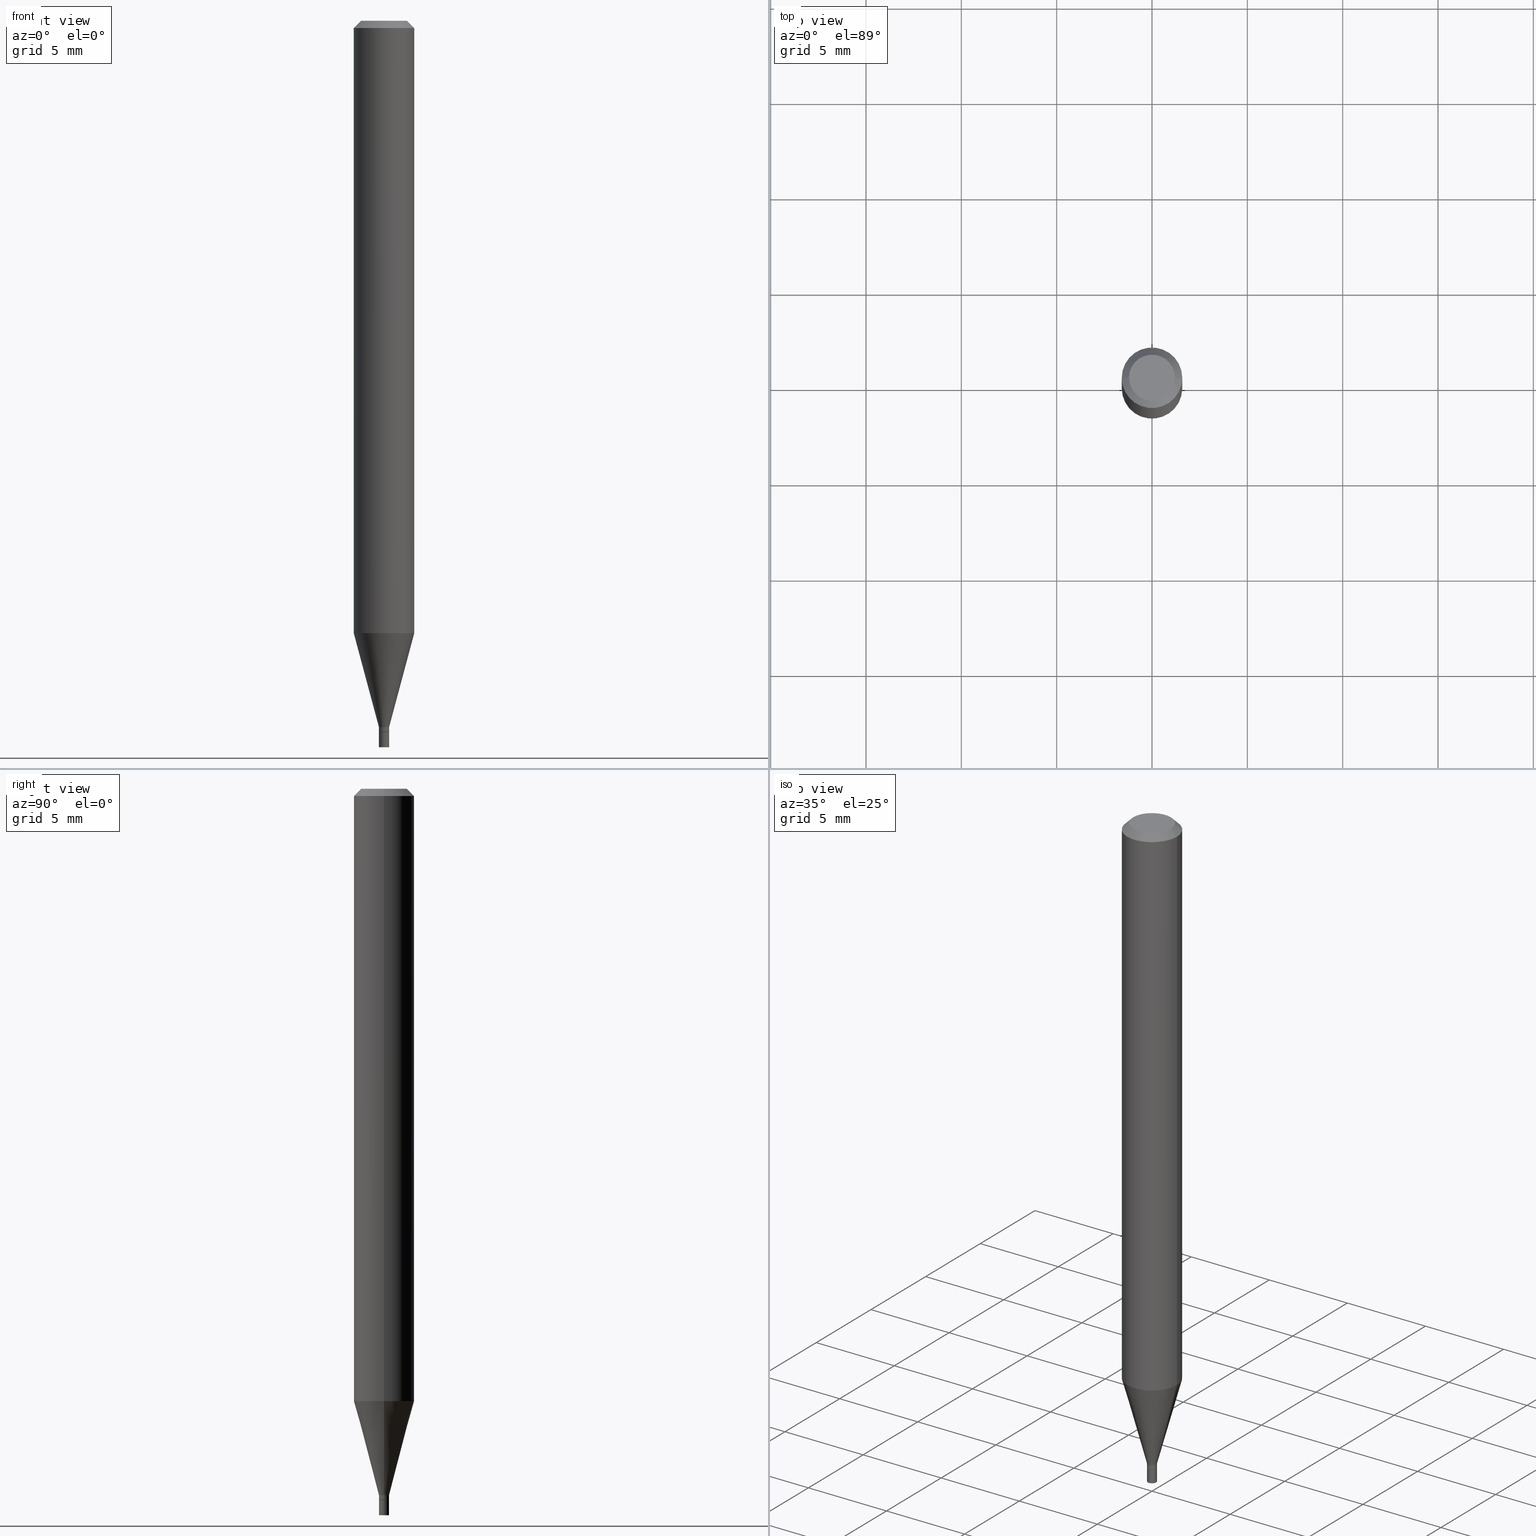
[diagram: canonical four-view strip — front | top / right | iso, engineering-drawing reading convention]
A machine part, canonical four-view strip (front | top / right | iso — engineering-drawing reading convention). The complete STEP part file that produces these views, byte-faithful:
ISO-10303-21;
HEADER;
FILE_DESCRIPTION (( 'STEP AP203' ),
    '1' );
FILE_NAME ('01101.STEP',
    '2024-03-19T22:55:03',
    ( '' ),
    ( '' ),
    'SwSTEP 2.0',
    'SolidWorks 2023',
    '' );
FILE_SCHEMA (( 'CONFIG_CONTROL_DESIGN' ));
ENDSEC;

DATA;
#1 = VERTEX_POINT ( 'NONE', #240 ) ;
#2 = COORDINATED_UNIVERSAL_TIME_OFFSET ( 5, 0, .BEHIND. ) ;
#3 = DATE_AND_TIME ( #327, #317 ) ;
#4 = EDGE_CURVE ( 'NONE', #21, #242, #94, .T. ) ;
#5 = CIRCLE ( 'NONE', #455, 0.01049999999999992432 ) ;
#6 = FACE_OUTER_BOUND ( 'NONE', #174, .T. ) ;
#7 = DATE_AND_TIME ( #294, #121 ) ;
#8 = CYLINDRICAL_SURFACE ( 'NONE', #136, 0.06250000000000000000 ) ;
#9 = MECHANICAL_CONTEXT ( 'NONE', #109, 'mechanical' ) ;
#10 = DIRECTION ( 'NONE',  ( 2.438088387897960049E-29, -3.491481338843145188E-15, -1.000000000000000000 ) ) ;
#11 = DIRECTION ( 'NONE',  ( -2.445468806185136597E-29, 3.491481338843145583E-15, 1.000000000000000000 ) ) ;
#12 = CC_DESIGN_PERSON_AND_ORGANIZATION_ASSIGNMENT ( #216, #43, ( #151 ) ) ;
#13 = AXIS2_PLACEMENT_3D ( 'NONE', #347, #448, #413 ) ;
#14 = DIRECTION ( 'NONE',  ( -2.445468806185136597E-29, 3.491481338843145583E-15, 1.000000000000000000 ) ) ;
#15 = CARTESIAN_POINT ( 'NONE',  ( 0.06250000000000000000, -4.364351673553916694E-16, 3.047610484872459871E-30 ) ) ;
#16 = CARTESIAN_POINT ( 'NONE',  ( 3.591170941882873536E-29, -5.127240346091159508E-15, -1.468500000000000139 ) ) ;
#17 = ADVANCED_FACE ( 'NONE', ( #22 ), #165, .F. ) ;
#18 = AXIS2_PLACEMENT_3D ( 'NONE', #452, #300, #342 ) ;
#19 = LINE ( 'NONE', #307, #114 ) ;
#20 = CARTESIAN_POINT ( 'NONE',  ( 3.591170941882873536E-29, -5.127240346091159508E-15, -1.468500000000000139 ) ) ;
#21 = VERTEX_POINT ( 'NONE', #330 ) ;
#22 = FACE_OUTER_BOUND ( 'NONE', #138, .T. ) ;
#23 = DIRECTION ( 'NONE',  ( 1.000000000000000000, -6.982962677686284854E-15, 0.000000000000000000 ) ) ;
#24 = ORIENTED_EDGE ( 'NONE', *, *, #373, .F. ) ;
#25 = ORIENTED_EDGE ( 'NONE', *, *, #340, .F. ) ;
#26 = ORIENTED_EDGE ( 'NONE', *, *, #270, .F. ) ;
#27 = EDGE_LOOP ( 'NONE', ( #319, #382, #425, #349 ) ) ;
#28 = ADVANCED_FACE ( 'NONE', ( #6 ), #102, .T. ) ;
#29 = CARTESIAN_POINT ( 'NONE',  ( 7.848942293851005666E-45, -1.120620941036972666E-30, -3.209585938695794308E-16 ) ) ;
#30 = VECTOR ( 'NONE', #374, 39.37007874015748143 ) ;
#31 = APPROVAL_PERSON_ORGANIZATION ( #396, #247, #220 ) ;
#32 = EDGE_LOOP ( 'NONE', ( #358, #243, #35, #162 ) ) ;
#33 = ORIENTED_EDGE ( 'NONE', *, *, #388, .T. ) ;
#34 = CARTESIAN_POINT ( 'NONE',  ( -0.06250000000000000000, -1.789469637036353642E-15, -0.01499999999999999944 ) ) ;
#35 = ORIENTED_EDGE ( 'NONE', *, *, #281, .T. ) ;
#36 = CARTESIAN_POINT ( 'NONE',  ( 0.06250000000000000000, -4.851180641045576712E-15, -1.264433358006418651 ) ) ;
#37 = CC_DESIGN_PERSON_AND_ORGANIZATION_ASSIGNMENT ( #399, #75, ( #273 ) ) ;
#38 = CIRCLE ( 'NONE', #297, 0.04749999999999999362 ) ;
#39 = AXIS2_PLACEMENT_3D ( 'NONE', #252, #134, #318 ) ;
#40 = EDGE_LOOP ( 'NONE', ( #258, #169, #213, #244 ) ) ;
#41 = APPROVAL_STATUS ( 'not_yet_approved' ) ;
#42 = VECTOR ( 'NONE', #350, 39.37007874015748143 ) ;
#43 = PERSON_AND_ORGANIZATION_ROLE ( 'creator' ) ;
#44 = DIRECTION ( 'NONE',  ( -2.445468806185136597E-29, 3.491481338843145583E-15, 1.000000000000000000 ) ) ;
#45 = DIRECTION ( 'NONE',  ( 1.000000000000000000, -6.982962677686265922E-15, 4.876176775795935793E-29 ) ) ;
#46 = DIRECTION ( 'NONE',  ( -2.445468806185136597E-29, 3.491481338843145583E-15, 1.000000000000000000 ) ) ;
#47 = CIRCLE ( 'NONE', #285, 0.01050000000000000239 ) ;
#48 = CARTESIAN_POINT ( 'NONE',  ( 3.591170941882873536E-29, -5.127240346091159508E-15, -1.468500000000000139 ) ) ;
#49 = EDGE_CURVE ( 'NONE', #103, #457, #189, .T. ) ;
#50 = CARTESIAN_POINT ( 'NONE',  ( -0.06250000000000000000, 3.840629472727444916E-16, -0.01499999999999999944 ) ) ;
#51 = DIRECTION ( 'NONE',  ( -0.7071067811865551223, 2.468850131082336736E-15, -0.7071067811865399122 ) ) ;
#52 = AXIS2_PLACEMENT_3D ( 'NONE', #345, #441, #45 ) ;
#53 = FACE_OUTER_BOUND ( 'NONE', #395, .T. ) ;
#54 = DIRECTION ( 'NONE',  ( 0.7071067811865551223, -7.319954787623281289E-15, -0.7071067811865399122 ) ) ;
#55 = DIRECTION ( 'NONE',  ( 1.000000000000000000, -6.982962677686267499E-15, 4.852736867747366768E-29 ) ) ;
#56 = ORIENTED_EDGE ( 'NONE', *, *, #329, .F. ) ;
#57 = EDGE_CURVE ( 'NONE', #384, #354, #118, .T. ) ;
#58 = CARTESIAN_POINT ( 'NONE',  ( 0.01049999999999992432, -5.165646640818432586E-15, -1.458500000000000130 ) ) ;
#59 = ORIENTED_EDGE ( 'NONE', *, *, #400, .T. ) ;
#60 = ORIENTED_EDGE ( 'NONE', *, *, #440, .F. ) ;
#61 = DIRECTION ( 'NONE',  ( 2.445468806185136597E-29, -3.491481338843145583E-15, -1.000000000000000000 ) ) ;
#62 = AXIS2_PLACEMENT_3D ( 'NONE', #129, #61, #201 ) ;
#63 = AXIS2_PLACEMENT_3D ( 'NONE', #132, #464, #23 ) ;
#64 = ORIENTED_EDGE ( 'NONE', *, *, #233, .T. ) ;
#65 = ORIENTED_EDGE ( 'NONE', *, *, #270, .T. ) ;
#66 = VERTEX_POINT ( 'NONE', #148 ) ;
#67 = DIRECTION ( 'NONE',  ( 0.2588190451025214611, 1.565188264969621573E-15, 0.9659258262890682012 ) ) ;
#68 = CC_DESIGN_DATE_AND_TIME_ASSIGNMENT ( #183, #221, ( #273 ) ) ;
#69 = COORDINATED_UNIVERSAL_TIME_OFFSET ( 5, 0, .BEHIND. ) ;
#70 = ORIENTED_EDGE ( 'NONE', *, *, #433, .F. ) ;
#71 =( CONVERSION_BASED_UNIT ( 'INCH', #267 ) LENGTH_UNIT ( ) NAMED_UNIT ( #261 ) );
#72 = AXIS2_PLACEMENT_3D ( 'NONE', #447, #226, #123 ) ;
#73 = LOCAL_TIME ( 18, 55, 3.000000000000000000, #2 ) ;
#74 = ADVANCED_FACE ( 'NONE', ( #111 ), #8, .T. ) ;
#75 = PERSON_AND_ORGANIZATION_ROLE ( 'creator' ) ;
#76 = CARTESIAN_POINT ( 'NONE',  ( 0.000000000000000000, 0.000000000000000000, 0.000000000000000000 ) ) ;
#77 = PLANE ( 'NONE',  #185 ) ;
#78 = CLOSED_SHELL ( 'NONE', ( #397, #17, #428, #79 ) ) ;
#79 = ADVANCED_FACE ( 'NONE', ( #147 ), #77, .F. ) ;
#80 = DIRECTION ( 'NONE',  ( 1.000000000000000000, -6.982962677686266711E-15, 0.000000000000000000 ) ) ;
#81 = DIRECTION ( 'NONE',  ( 1.000000000000000000, -6.982962677686266711E-15, 4.876176775795935793E-29 ) ) ;
#82 = CONICAL_SURFACE ( 'NONE', #62, 0.06250000000000000000, 0.7853981633974590482 ) ;
#83 = AXIS2_PLACEMENT_3D ( 'NONE', #283, #104, #256 ) ;
#84 = CYLINDRICAL_SURFACE ( 'NONE', #430, 0.06250000000000000000 ) ;
#85 = FACE_OUTER_BOUND ( 'NONE', #87, .T. ) ;
#86 = CARTESIAN_POINT ( 'NONE',  ( 0.000000000000000000, 0.000000000000000000, 0.000000000000000000 ) ) ;
#87 = EDGE_LOOP ( 'NONE', ( #206, #203, #303, #460 ) ) ;
#88 = VECTOR ( 'NONE', #51, 39.37007874015748143 ) ;
#89 = VERTEX_POINT ( 'NONE', #260 ) ;
#90 = CARTESIAN_POINT ( 'NONE',  ( 3.092132334504619836E-29, -4.414745473690185042E-15, -1.264433358006418651 ) ) ;
#91 = CC_DESIGN_APPROVAL ( #321, ( #273 ) ) ;
#92 = EDGE_CURVE ( 'NONE', #239, #386, #392, .T. ) ;
#93 = ORIENTED_EDGE ( 'NONE', *, *, #217, .T. ) ;
#94 = LINE ( 'NONE', #235, #415 ) ;
#95 = DIRECTION ( 'NONE',  ( 1.000000000000000000, -6.982962677686284854E-15, 0.000000000000000000 ) ) ;
#96 = DIRECTION ( 'NONE',  ( 1.000000000000000000, -6.982962677686235156E-15, 0.000000000000000000 ) ) ;
#97 = DIRECTION ( 'NONE',  ( 1.000000000000000000, -6.982962677686265922E-15, 4.876176775795935232E-29 ) ) ;
#98 = VERTEX_POINT ( 'NONE', #219 ) ;
#99 = ORIENTED_EDGE ( 'NONE', *, *, #156, .T. ) ;
#100 = FACE_OUTER_BOUND ( 'NONE', #32, .T. ) ;
#101 = ADVANCED_BREP_SHAPE_REPRESENTATION ( '01101', ( #356, #352, #298 ), #339 ) ;
#102 = CYLINDRICAL_SURFACE ( 'NONE', #398, 0.01049999999999992432 ) ;
#103 = VERTEX_POINT ( 'NONE', #124 ) ;
#104 = DIRECTION ( 'NONE',  ( -2.445468806185136597E-29, 3.491481338843145583E-15, 1.000000000000000000 ) ) ;
#105 = AXIS2_PLACEMENT_3D ( 'NONE', #214, #444, #304 ) ;
#106 = EDGE_CURVE ( 'NONE', #386, #103, #423, .T. ) ;
#107 = CC_DESIGN_APPROVAL ( #247, ( #151 ) ) ;
#108 = PERSON_AND_ORGANIZATION ( #323, #381 ) ;
#109 = APPLICATION_CONTEXT ( 'configuration controlled 3d designs of mechanical parts and assemblies' ) ;
#110 = PERSON_AND_ORGANIZATION ( #323, #381 ) ;
#111 = FACE_OUTER_BOUND ( 'NONE', #414, .T. ) ;
#112 = ADVANCED_FACE ( 'NONE', ( #232 ), #268, .T. ) ;
#113 = APPROVAL_STATUS ( 'not_yet_approved' ) ;
#114 = VECTOR ( 'NONE', #438, 39.37007874015748143 ) ;
#115 = DIRECTION ( 'NONE',  ( -1.000000000000000000, 6.982962677686265922E-15, -4.876176775795935793E-29 ) ) ;
#116 = DATE_AND_TIME ( #451, #416 ) ;
#117 = CARTESIAN_POINT ( 'NONE',  ( -0.01000000000000000194, -5.053536845341038225E-15, -1.468500000000000139 ) ) ;
#118 = LINE ( 'NONE', #157, #437 ) ;
#119 = LINE ( 'NONE', #231, #380 ) ;
#120 = CIRCLE ( 'NONE', #251, 0.06250000000000000000 ) ;
#121 = LOCAL_TIME ( 18, 55, 3.000000000000000000, #184 ) ;
#122 = CARTESIAN_POINT ( 'NONE',  ( 3.566716253821021430E-29, -5.092325532702727858E-15, -1.458500000000000130 ) ) ;
#123 = DIRECTION ( 'NONE',  ( 1.000000000000000000, -6.982962677686243834E-15, 0.000000000000000000 ) ) ;
#124 = CARTESIAN_POINT ( 'NONE',  ( 0.01049999999999992432, -5.198815713537443520E-15, -1.468000000000000194 ) ) ;
#125 = ADVANCED_FACE ( 'NONE', ( #272 ), #279, .T. ) ;
#126 = DIRECTION ( 'NONE',  ( -2.445468806185136597E-29, 3.491481338843145583E-15, 1.000000000000000000 ) ) ;
#127 = AXIS2_PLACEMENT_3D ( 'NONE', #188, #274, #409 ) ;
#128 = ORIENTED_EDGE ( 'NONE', *, *, #140, .F. ) ;
#129 = CARTESIAN_POINT ( 'NONE',  ( 3.668203209277705088E-31, -5.237222008264718399E-17, -0.01499999999999999944 ) ) ;
#130 = AXIS2_PLACEMENT_3D ( 'NONE', #278, #419, #164 ) ;
#131 = ORIENTED_EDGE ( 'NONE', *, *, #145, .F. ) ;
#132 = CARTESIAN_POINT ( 'NONE',  ( 3.668203209277704895E-29, -5.237222008264718177E-15, -1.500000000000000222 ) ) ;
#133 = ADVANCED_FACE ( 'NONE', ( #439 ), #338, .T. ) ;
#134 = DIRECTION ( 'NONE',  ( -2.445468806185136597E-29, 3.491481338843145583E-15, 1.000000000000000000 ) ) ;
#135 = CARTESIAN_POINT ( 'NONE',  ( 3.668203209277704895E-29, -5.237222008264718177E-15, -1.500000000000000222 ) ) ;
#136 = AXIS2_PLACEMENT_3D ( 'NONE', #266, #44, #222 ) ;
#137 = AXIS2_PLACEMENT_3D ( 'NONE', #458, #427, #97 ) ;
#138 = EDGE_LOOP ( 'NONE', ( #24, #205 ) ) ;
#139 = CARTESIAN_POINT ( 'NONE',  ( 0.000000000000000000, 0.000000000000000000, 0.000000000000000000 ) ) ;
#140 = EDGE_CURVE ( 'NONE', #353, #242, #158, .T. ) ;
#141 = PERSON_AND_ORGANIZATION ( #323, #381 ) ;
#142 = CIRCLE ( 'NONE', #207, 0.01000000000000000194 ) ;
#143 = AXIS2_PLACEMENT_3D ( 'NONE', #16, #14, #406 ) ;
#144 = SECURITY_CLASSIFICATION_LEVEL ( 'unclassified' ) ;
#145 = EDGE_CURVE ( 'NONE', #89, #239, #359, .T. ) ;
#146 = CALENDAR_DATE ( 2024, 19, 3 ) ;
#147 = FACE_OUTER_BOUND ( 'NONE', #412, .T. ) ;
#148 = CARTESIAN_POINT ( 'NONE',  ( 0.01050000000000000239, -5.310543116380424482E-15, -1.500000000000000222 ) ) ;
#149 = DIRECTION ( 'NONE',  ( -2.445468806185136597E-29, 3.491481338843145583E-15, 1.000000000000000000 ) ) ;
#150 = CIRCLE ( 'NONE', #371, 0.06250000000000000000 ) ;
#151 = PRODUCT_DEFINITION_FORMATION_WITH_SPECIFIED_SOURCE ( 'ANY', '', #308, .NOT_KNOWN. ) ;
#152 = CARTESIAN_POINT ( 'NONE',  ( 3.316907271900976096E-16, 0.04749999999999999362, -3.263246605298391118E-16 ) ) ;
#153 = UNCERTAINTY_MEASURE_WITH_UNIT (LENGTH_MEASURE( 1.000000000000000082E-05 ), #71, 'distance_accuracy_value', 'NONE');
#154 = CARTESIAN_POINT ( 'NONE',  ( 0.01049999999999992432, -7.332110811570528228E-17, 5.119985614585695588E-31 ) ) ;
#155 = CARTESIAN_POINT ( 'NONE',  ( -0.01049999999999992432, -4.494187404644019652E-15, -1.458500000000000130 ) ) ;
#156 = EDGE_CURVE ( 'NONE', #98, #1, #47, .T. ) ;
#157 = CARTESIAN_POINT ( 'NONE',  ( -0.06250000000000000000, 4.440892098500626162E-16, -3.074334431409316114E-30 ) ) ;
#158 = LINE ( 'NONE', #15, #30 ) ;
#159 = PRODUCT_RELATED_PRODUCT_CATEGORY ( 'detail', '', ( #308 ) ) ;
#160 = CIRCLE ( 'NONE', #263, 0.01050000000000000239 ) ;
#161 = DIRECTION ( 'NONE',  ( -1.000000000000000000, 6.982962677686266711E-15, 0.000000000000000000 ) ) ;
#162 = ORIENTED_EDGE ( 'NONE', *, *, #156, .F. ) ;
#163 = CC_DESIGN_PERSON_AND_ORGANIZATION_ASSIGNMENT ( #108, #370, ( #197 ) ) ;
#164 = DIRECTION ( 'NONE',  ( 1.000000000000000000, -6.982962677686266711E-15, 0.000000000000000000 ) ) ;
#165 = PLANE ( 'NONE',  #190 ) ;
#166 = DIRECTION ( 'NONE',  ( -2.445468806185136597E-29, 3.491481338843145583E-15, 1.000000000000000000 ) ) ;
#167 = ORIENTED_EDGE ( 'NONE', *, *, #286, .T. ) ;
#168 = EDGE_LOOP ( 'NONE', ( #56, #253, #33, #456 ) ) ;
#169 = ORIENTED_EDGE ( 'NONE', *, *, #264, .T. ) ;
#170 = CONICAL_SURFACE ( 'NONE', #357, 0.01000000000000000194, 0.7853981633974718157 ) ;
#171 = LINE ( 'NONE', #391, #306 ) ;
#172 = VECTOR ( 'NONE', #245, 39.37007874015748143 ) ;
#173 = ADVANCED_FACE ( 'NONE', ( #336 ), #224, .T. ) ;
#174 = EDGE_LOOP ( 'NONE', ( #314, #424, #70, #218 ) ) ;
#175 = FACE_OUTER_BOUND ( 'NONE', #289, .T. ) ;
#176 = DIRECTION ( 'NONE',  ( -2.445468806185136597E-29, 3.491481338843145583E-15, 1.000000000000000000 ) ) ;
#177 = APPLICATION_CONTEXT ( 'configuration controlled 3d designs of mechanical parts and assemblies' ) ;
#178 = APPROVAL_ROLE ( '' ) ;
#179 = CIRCLE ( 'NONE', #238, 0.06250000000000000000 ) ;
#180 = CC_DESIGN_SECURITY_CLASSIFICATION ( #197, ( #151 ) ) ;
#181 = EDGE_CURVE ( 'NONE', #1, #98, #305, .T. ) ;
#182 = APPROVAL_STATUS ( 'not_yet_approved' ) ;
#183 = DATE_AND_TIME ( #223, #73 ) ;
#184 = COORDINATED_UNIVERSAL_TIME_OFFSET ( 5, 0, .BEHIND. ) ;
#185 = AXIS2_PLACEMENT_3D ( 'NONE', #334, #10, #436 ) ;
#186 = DIRECTION ( 'NONE',  ( -2.445468806185136597E-29, 3.491481338843145583E-15, 1.000000000000000000 ) ) ;
#187 = CARTESIAN_POINT ( 'NONE',  ( 3.668203209277705088E-31, -5.237222008264718399E-17, -0.01499999999999999944 ) ) ;
#188 = CARTESIAN_POINT ( 'NONE',  ( 3.591170941882873536E-29, -5.127240346091159508E-15, -1.468500000000000139 ) ) ;
#189 = LINE ( 'NONE', #154, #325 ) ;
#190 = AXIS2_PLACEMENT_3D ( 'NONE', #421, #393, #463 ) ;
#191 = ADVANCED_FACE ( 'NONE', ( #192 ), #236, .F. ) ;
#192 = FACE_OUTER_BOUND ( 'NONE', #379, .T. ) ;
#193 = FACE_OUTER_BOUND ( 'NONE', #387, .T. ) ;
#194 = DIRECTION ( 'NONE',  ( 1.000000000000000000, -6.982962677686235156E-15, 0.000000000000000000 ) ) ;
#195 = CC_DESIGN_DATE_AND_TIME_ASSIGNMENT ( #7, #434, ( #197 ) ) ;
#196 = AXIS2_PLACEMENT_3D ( 'NONE', #299, #301, #161 ) ;
#197 = SECURITY_CLASSIFICATION ( '', '', #144 ) ;
#198 = DIRECTION ( 'NONE',  ( -2.445468806185136597E-29, 3.491481338843145583E-15, 1.000000000000000000 ) ) ;
#199 = ORIENTED_EDGE ( 'NONE', *, *, #295, .T. ) ;
#200 = APPROVAL_ROLE ( '' ) ;
#201 = DIRECTION ( 'NONE',  ( -1.000000000000000000, 6.982962677686266711E-15, 0.000000000000000000 ) ) ;
#202 = ORIENTED_EDGE ( 'NONE', *, *, #329, .T. ) ;
#203 = ORIENTED_EDGE ( 'NONE', *, *, #92, .T. ) ;
#204 = DIRECTION ( 'NONE',  ( -2.445468806185136597E-29, 3.491481338843145583E-15, 1.000000000000000000 ) ) ;
#205 = ORIENTED_EDGE ( 'NONE', *, *, #407, .F. ) ;
#206 = ORIENTED_EDGE ( 'NONE', *, *, #145, .T. ) ;
#207 = AXIS2_PLACEMENT_3D ( 'NONE', #20, #204, #96 ) ;
#208 = ADVANCED_FACE ( 'NONE', ( #85 ), #170, .T. ) ;
#209 = DIRECTION ( 'NONE',  ( 1.000000000000000000, -6.982962677686267499E-15, 4.852736867747366768E-29 ) ) ;
#210 = CIRCLE ( 'NONE', #63, 0.01050000000000000239 ) ;
#211 = ORIENTED_EDGE ( 'NONE', *, *, #4, .F. ) ;
#212 = ORIENTED_EDGE ( 'NONE', *, *, #57, .F. ) ;
#213 = ORIENTED_EDGE ( 'NONE', *, *, #293, .F. ) ;
#214 = CARTESIAN_POINT ( 'NONE',  ( 0.000000000000000000, 0.000000000000000000, 0.000000000000000000 ) ) ;
#215 = DIRECTION ( 'NONE',  ( 1.000000000000000000, -6.982962677686262766E-15, 0.000000000000000000 ) ) ;
#216 = PERSON_AND_ORGANIZATION ( #323, #381 ) ;
#217 = EDGE_CURVE ( 'NONE', #282, #354, #341, .T. ) ;
#218 = ORIENTED_EDGE ( 'NONE', *, *, #49, .F. ) ;
#219 = CARTESIAN_POINT ( 'NONE',  ( -0.01050000000000000239, -5.107624189923127862E-15, -1.468500000000000139 ) ) ;
#220 = APPROVAL_ROLE ( '' ) ;
#221 = DATE_TIME_ROLE ( 'creation_date' ) ;
#222 = DIRECTION ( 'NONE',  ( 1.000000000000000000, -6.982962677686266711E-15, 4.876176775795935793E-29 ) ) ;
#223 = CALENDAR_DATE ( 2024, 19, 3 ) ;
#224 = CONICAL_SURFACE ( 'NONE', #196, 0.06250000000000000000, 0.7853981633974590482 ) ;
#225 = APPROVAL_PERSON_ORGANIZATION ( #110, #410, #200 ) ;
#226 = DIRECTION ( 'NONE',  ( -2.445468806185136597E-29, 3.491481338843145583E-15, 1.000000000000000000 ) ) ;
#227 = ADVANCED_FACE ( 'NONE', ( #296 ), #405, .F. ) ;
#228 = CARTESIAN_POINT ( 'NONE',  ( 0.01050000000000000239, -7.332110811570581229E-17, 5.119985614585733248E-31 ) ) ;
#229 = DIRECTION ( 'NONE',  ( -2.445468806185136877E-29, 3.491481338843145188E-15, 1.000000000000000000 ) ) ;
#230 = CIRCLE ( 'NONE', #443, 0.01049999999999992432 ) ;
#231 = CARTESIAN_POINT ( 'NONE',  ( -0.01049999999999992432, -5.017718545447917667E-15, -1.458500000000000130 ) ) ;
#232 = FACE_OUTER_BOUND ( 'NONE', #310, .T. ) ;
#233 = EDGE_CURVE ( 'NONE', #89, #103, #19, .T. ) ;
#234 = CARTESIAN_POINT ( 'NONE',  ( 3.591170941882873536E-29, -5.127240346091159508E-15, -1.468500000000000139 ) ) ;
#235 = CARTESIAN_POINT ( 'NONE',  ( 0.06250000000000000000, -4.811533449433679005E-16, -0.01499999999999999944 ) ) ;
#236 = PLANE ( 'NONE',  #454 ) ;
#237 = PRODUCT_DEFINITION_SHAPE ( 'NONE', 'NONE',  #273 ) ;
#238 = AXIS2_PLACEMENT_3D ( 'NONE', #187, #11, #80 ) ;
#239 = VERTEX_POINT ( 'NONE', #117 ) ;
#240 = CARTESIAN_POINT ( 'NONE',  ( 0.01050000000000000239, -5.200561454206865813E-15, -1.468500000000000139 ) ) ;
#241 = CARTESIAN_POINT ( 'NONE',  ( -0.01049999999999992432, -5.050887618166927813E-15, -1.468000000000000194 ) ) ;
#242 = VERTEX_POINT ( 'NONE', #411 ) ;
#243 = ORIENTED_EDGE ( 'NONE', *, *, #407, .T. ) ;
#244 = ORIENTED_EDGE ( 'NONE', *, *, #400, .F. ) ;
#245 = DIRECTION ( 'NONE',  ( -2.445468806185136877E-29, 3.491481338843145188E-15, 1.000000000000000000 ) ) ;
#246 = VERTEX_POINT ( 'NONE', #155 ) ;
#247 = APPROVAL ( #41, 'UNSPECIFIED' ) ;
#248 = DIRECTION ( 'NONE',  ( -2.445468806185136597E-29, 3.491481338843145583E-15, 1.000000000000000000 ) ) ;
#249 = EDGE_LOOP ( 'NONE', ( #449, #324, #59, #25 ) ) ;
#250 = ORIENTED_EDGE ( 'NONE', *, *, #106, .T. ) ;
#251 = AXIS2_PLACEMENT_3D ( 'NONE', #362, #360, #322 ) ;
#252 = CARTESIAN_POINT ( 'NONE',  ( 3.591170941882873536E-29, -5.127240346091159508E-15, -1.468500000000000139 ) ) ;
#253 = ORIENTED_EDGE ( 'NONE', *, *, #4, .T. ) ;
#254 = ORIENTED_EDGE ( 'NONE', *, *, #340, .T. ) ;
#255 = ORIENTED_EDGE ( 'NONE', *, *, #295, .F. ) ;
#256 = DIRECTION ( 'NONE',  ( 1.000000000000000000, -6.982962677686243834E-15, 0.000000000000000000 ) ) ;
#257 = ADVANCED_FACE ( 'NONE', ( #193 ), #84, .T. ) ;
#258 = ORIENTED_EDGE ( 'NONE', *, *, #433, .T. ) ;
#259 = ORIENTED_EDGE ( 'NONE', *, *, #286, .F. ) ;
#260 = CARTESIAN_POINT ( 'NONE',  ( 0.01000000000000000194, -5.197069972868022017E-15, -1.468500000000000139 ) ) ;
#261 = DIMENSIONAL_EXPONENTS ( 1.000000000000000000, 0.000000000000000000, 0.000000000000000000, 0.000000000000000000, 0.000000000000000000, 0.000000000000000000, 0.000000000000000000 ) ;
#262 = VECTOR ( 'NONE', #376, 39.37007874015748143 ) ;
#263 = AXIS2_PLACEMENT_3D ( 'NONE', #135, #176, #95 ) ;
#264 = EDGE_CURVE ( 'NONE', #246, #384, #119, .T. ) ;
#265 =( NAMED_UNIT ( * ) PLANE_ANGLE_UNIT ( ) SI_UNIT ( $, .RADIAN. ) );
#266 = CARTESIAN_POINT ( 'NONE',  ( 0.000000000000000000, 0.000000000000000000, 0.000000000000000000 ) ) ;
#267 = LENGTH_MEASURE_WITH_UNIT ( LENGTH_MEASURE( 0.02539999999999999897 ), #365 );
#268 = CYLINDRICAL_SURFACE ( 'NONE', #105, 0.01049999999999992432 ) ;
#269 = DIRECTION ( 'NONE',  ( -0.2588190451025214611, 5.211531920934551042E-15, 0.9659258262890682012 ) ) ;
#270 = EDGE_CURVE ( 'NONE', #354, #242, #179, .T. ) ;
#271 = LINE ( 'NONE', #228, #262 ) ;
#272 = FACE_OUTER_BOUND ( 'NONE', #40, .T. ) ;
#273 = PRODUCT_DEFINITION ( 'UNKNOWN', '', #151, #275 ) ;
#274 = DIRECTION ( 'NONE',  ( -2.445468806185136597E-29, 3.491481338843145583E-15, 1.000000000000000000 ) ) ;
#275 = DESIGN_CONTEXT ( 'detailed design', #177, 'design' ) ;
#276 = DIRECTION ( 'NONE',  ( 2.438088387897960049E-29, -3.491481338843145188E-15, -1.000000000000000000 ) ) ;
#277 = APPROVAL_DATE_TIME ( #116, #410 ) ;
#278 = CARTESIAN_POINT ( 'NONE',  ( 3.668203209277705088E-31, -5.237222008264718399E-17, -0.01499999999999999944 ) ) ;
#279 = CONICAL_SURFACE ( 'NONE', #72, 0.01049999999999992432, 0.2617993877991501295 ) ;
#280 = LINE ( 'NONE', #418, #172 ) ;
#281 = EDGE_CURVE ( 'NONE', #66, #1, #271, .T. ) ;
#282 = VERTEX_POINT ( 'NONE', #343 ) ;
#283 = CARTESIAN_POINT ( 'NONE',  ( 3.589948207479781295E-29, -5.125494605421738793E-15, -1.468000000000000194 ) ) ;
#284 = CARTESIAN_POINT ( 'NONE',  ( -0.06250000000000000000, -3.970656263840122426E-15, -1.264433358006418651 ) ) ;
#285 = AXIS2_PLACEMENT_3D ( 'NONE', #48, #375, #337 ) ;
#286 = EDGE_CURVE ( 'NONE', #282, #21, #38, .T. ) ;
#287 = LINE ( 'NONE', #355, #42 ) ;
#288 = APPROVAL_DATE_TIME ( #332, #321 ) ;
#289 = EDGE_LOOP ( 'NONE', ( #429, #199, #64, #351 ) ) ;
#290 = DIRECTION ( 'NONE',  ( 0.000000000000000000, 0.000000000000000000, 1.000000000000000000 ) ) ;
#291 = CIRCLE ( 'NONE', #331, 0.04749999999999999362 ) ;
#292 = CIRCLE ( 'NONE', #83, 0.01049999999999992432 ) ;
#293 = EDGE_CURVE ( 'NONE', #353, #384, #150, .T. ) ;
#294 = CALENDAR_DATE ( 2024, 19, 3 ) ;
#295 = EDGE_CURVE ( 'NONE', #239, #89, #142, .T. ) ;
#296 = FACE_OUTER_BOUND ( 'NONE', #417, .T. ) ;
#297 = AXIS2_PLACEMENT_3D ( 'NONE', #389, #248, #55 ) ;
#298 = AXIS2_PLACEMENT_3D ( 'NONE', #139, #290, #435 ) ;
#299 = CARTESIAN_POINT ( 'NONE',  ( 3.668203209277705088E-31, -5.237222008264718399E-17, -0.01499999999999999944 ) ) ;
#300 = DIRECTION ( 'NONE',  ( -2.445468806185136597E-29, 3.491481338843145583E-15, 1.000000000000000000 ) ) ;
#301 = DIRECTION ( 'NONE',  ( 2.445468806185136597E-29, -3.491481338843145583E-15, -1.000000000000000000 ) ) ;
#302 = EDGE_CURVE ( 'NONE', #246, #457, #230, .T. ) ;
#303 = ORIENTED_EDGE ( 'NONE', *, *, #459, .F. ) ;
#304 = DIRECTION ( 'NONE',  ( 1.000000000000000000, -6.982962677686267499E-15, 4.876176775795935793E-29 ) ) ;
#305 = CIRCLE ( 'NONE', #143, 0.01050000000000000239 ) ;
#306 = VECTOR ( 'NONE', #67, 39.37007874015747433 ) ;
#307 = CARTESIAN_POINT ( 'NONE',  ( 0.01000000000000000194, -5.197069972868022017E-15, -1.468500000000000139 ) ) ;
#308 = PRODUCT ( '01101', '01101', '', ( #9 ) ) ;
#309 = COORDINATED_UNIVERSAL_TIME_OFFSET ( 5, 0, .BEHIND. ) ;
#310 = EDGE_LOOP ( 'NONE', ( #60, #250, #346, #315 ) ) ;
#311 = FACE_OUTER_BOUND ( 'NONE', #27, .T. ) ;
#312 = ADVANCED_FACE ( 'NONE', ( #53 ), #82, .T. ) ;
#313 = DIRECTION ( 'NONE',  ( -2.445468806185136597E-29, 3.491481338843145583E-15, 1.000000000000000000 ) ) ;
#314 = ORIENTED_EDGE ( 'NONE', *, *, #459, .T. ) ;
#315 = ORIENTED_EDGE ( 'NONE', *, *, #302, .F. ) ;
#316 = AXIS2_PLACEMENT_3D ( 'NONE', #122, #46, #408 ) ;
#317 = LOCAL_TIME ( 18, 55, 3.000000000000000000, #369 ) ;
#318 = DIRECTION ( 'NONE',  ( 1.000000000000000000, -6.982962677686235156E-15, 0.000000000000000000 ) ) ;
#319 = ORIENTED_EDGE ( 'NONE', *, *, #373, .T. ) ;
#320 = CARTESIAN_POINT ( 'NONE',  ( -0.01050000000000000239, -5.107624189923127862E-15, -1.500000000000000222 ) ) ;
#321 = APPROVAL ( #182, 'UNSPECIFIED' ) ;
#322 = DIRECTION ( 'NONE',  ( 1.000000000000000000, -6.982962677686262766E-15, 0.000000000000000000 ) ) ;
#323 = PERSON ( 'UNSPECIFIED', 'UNSPECIFIED', 'UNSPECIFIED', ('UNSPECIFIED'), ('UNSPECIFIED'), ('UNSPECIFIED') ) ;
#324 = ORIENTED_EDGE ( 'NONE', *, *, #302, .T. ) ;
#325 = VECTOR ( 'NONE', #229, 39.37007874015748143 ) ;
#326 = DIRECTION ( 'NONE',  ( -0.7071067811865642261, 7.493145998870414114E-15, 0.7071067811865309194 ) ) ;
#327 = CALENDAR_DATE ( 2024, 19, 3 ) ;
#328 = PERSON_AND_ORGANIZATION ( #323, #381 ) ;
#329 = EDGE_CURVE ( 'NONE', #21, #282, #291, .T. ) ;
#330 = CARTESIAN_POINT ( 'NONE',  ( 0.04749999999999999362, -4.035134999187584047E-16, -3.209585938695769163E-16 ) ) ;
#331 = AXIS2_PLACEMENT_3D ( 'NONE', #29, #166, #209 ) ;
#332 = DATE_AND_TIME ( #146, #431 ) ;
#333 =( NAMED_UNIT ( * ) SI_UNIT ( $, .STERADIAN. ) SOLID_ANGLE_UNIT ( ) );
#334 = CARTESIAN_POINT ( 'NONE',  ( 7.332110811574170546E-17, 0.01049999999999487454, -1.468500000000000139 ) ) ;
#335 = DIRECTION ( 'NONE',  ( 1.000000000000000000, -6.982962677686267499E-15, 4.876176775795935793E-29 ) ) ;
#336 = FACE_OUTER_BOUND ( 'NONE', #168, .T. ) ;
#337 = DIRECTION ( 'NONE',  ( 1.000000000000000000, -6.982962677686284854E-15, 0.000000000000000000 ) ) ;
#338 = CONICAL_SURFACE ( 'NONE', #316, 0.01049999999999992432, 0.2617993877991501295 ) ;
#339 =( GEOMETRIC_REPRESENTATION_CONTEXT ( 3 ) GLOBAL_UNCERTAINTY_ASSIGNED_CONTEXT ( ( #153 ) ) GLOBAL_UNIT_ASSIGNED_CONTEXT ( ( #71, #265, #333 ) ) REPRESENTATION_CONTEXT ( 'NONE', 'WORKASPACE' ) );
#340 = EDGE_CURVE ( 'NONE', #384, #353, #120, .T. ) ;
#341 = LINE ( 'NONE', #50, #88 ) ;
#342 = DIRECTION ( 'NONE',  ( 1.000000000000000000, -6.982962677686243834E-15, 0.000000000000000000 ) ) ;
#343 = CARTESIAN_POINT ( 'NONE',  ( -0.04749999999999999362, 3.578768372314205575E-16, -3.209585938695818960E-16 ) ) ;
#344 = ORIENTED_EDGE ( 'NONE', *, *, #181, .T. ) ;
#345 = CARTESIAN_POINT ( 'NONE',  ( 3.591170941882873536E-29, -5.127240346091159508E-15, -1.468500000000000139 ) ) ;
#346 = ORIENTED_EDGE ( 'NONE', *, *, #49, .T. ) ;
#347 = CARTESIAN_POINT ( 'NONE',  ( 0.000000000000000000, 0.000000000000000000, 0.000000000000000000 ) ) ;
#348 = ORIENTED_EDGE ( 'NONE', *, *, #388, .F. ) ;
#349 = ORIENTED_EDGE ( 'NONE', *, *, #281, .F. ) ;
#350 = DIRECTION ( 'NONE',  ( -2.445468806185136877E-29, 3.491481338843145188E-15, 1.000000000000000000 ) ) ;
#351 = ORIENTED_EDGE ( 'NONE', *, *, #106, .F. ) ;
#352 = MANIFOLD_SOLID_BREP ( 'Body-Move/Copy2[2]', #390 ) ;
#353 = VERTEX_POINT ( 'NONE', #36 ) ;
#354 = VERTEX_POINT ( 'NONE', #34 ) ;
#355 = CARTESIAN_POINT ( 'NONE',  ( -0.01050000000000000239, 7.460698725481053648E-17, -5.164881844767652549E-31 ) ) ;
#356 = MANIFOLD_SOLID_BREP ( 'Body-Move/Copy2[1]', #78 ) ;
#357 = AXIS2_PLACEMENT_3D ( 'NONE', #234, #377, #194 ) ;
#358 = ORIENTED_EDGE ( 'NONE', *, *, #361, .F. ) ;
#359 = CIRCLE ( 'NONE', #127, 0.01000000000000000194 ) ;
#360 = DIRECTION ( 'NONE',  ( -2.445468806185136597E-29, 3.491481338843145583E-15, 1.000000000000000000 ) ) ;
#361 = EDGE_CURVE ( 'NONE', #363, #98, #287, .T. ) ;
#362 = CARTESIAN_POINT ( 'NONE',  ( 3.092132334504619836E-29, -4.414745473690185042E-15, -1.264433358006418651 ) ) ;
#363 = VERTEX_POINT ( 'NONE', #320 ) ;
#364 = CARTESIAN_POINT ( 'NONE',  ( -0.01000000000000000194, -5.056186072515149426E-15, -1.468500000000000139 ) ) ;
#365 =( LENGTH_UNIT ( ) NAMED_UNIT ( * ) SI_UNIT ( $, .METRE. ) );
#366 = CONICAL_SURFACE ( 'NONE', #39, 0.01000000000000000194, 0.7853981633974718157 ) ;
#367 = PERSON_AND_ORGANIZATION_ROLE ( 'design_owner' ) ;
#368 = ADVANCED_FACE ( 'NONE', ( #175 ), #366, .T. ) ;
#369 = COORDINATED_UNIVERSAL_TIME_OFFSET ( 5, 0, .BEHIND. ) ;
#370 = PERSON_AND_ORGANIZATION_ROLE ( 'classification_officer' ) ;
#371 = AXIS2_PLACEMENT_3D ( 'NONE', #90, #126, #215 ) ;
#372 = APPROVAL_DATE_TIME ( #3, #247 ) ;
#373 = EDGE_CURVE ( 'NONE', #66, #363, #160, .T. ) ;
#374 = DIRECTION ( 'NONE',  ( -2.445468806185136877E-29, 3.491481338843145188E-15, 1.000000000000000000 ) ) ;
#375 = DIRECTION ( 'NONE',  ( -2.445468806185136597E-29, 3.491481338843145583E-15, 1.000000000000000000 ) ) ;
#376 = DIRECTION ( 'NONE',  ( -2.445468806185136877E-29, 3.491481338843145188E-15, 1.000000000000000000 ) ) ;
#377 = DIRECTION ( 'NONE',  ( -2.445468806185136597E-29, 3.491481338843145583E-15, 1.000000000000000000 ) ) ;
#378 = CYLINDRICAL_SURFACE ( 'NONE', #13, 0.01050000000000000239 ) ;
#379 = EDGE_LOOP ( 'NONE', ( #167, #202 ) ) ;
#380 = VECTOR ( 'NONE', #269, 39.37007874015747433 ) ;
#381 = ORGANIZATION ( 'UNSPECIFIED', 'UNSPECIFIED', '' ) ;
#382 = ORIENTED_EDGE ( 'NONE', *, *, #361, .T. ) ;
#383 = CARTESIAN_POINT ( 'NONE',  ( 3.566716253821021430E-29, -5.092325532702727858E-15, -1.458500000000000130 ) ) ;
#384 = VERTEX_POINT ( 'NONE', #284 ) ;
#385 = DIRECTION ( 'NONE',  ( 1.000000000000000000, -6.982962677686243834E-15, 0.000000000000000000 ) ) ;
#386 = VERTEX_POINT ( 'NONE', #241 ) ;
#387 = EDGE_LOOP ( 'NONE', ( #212, #254, #450, #26 ) ) ;
#388 = EDGE_CURVE ( 'NONE', #242, #354, #426, .T. ) ;
#389 = CARTESIAN_POINT ( 'NONE',  ( 7.848942293851005666E-45, -1.120620941036972666E-30, -3.209585938695794308E-16 ) ) ;
#390 = CLOSED_SHELL ( 'NONE', ( #28, #208, #173, #74, #125, #133, #257, #312, #191, #227, #368, #112 ) ) ;
#391 = CARTESIAN_POINT ( 'NONE',  ( 0.01049999999999992432, -5.165646640818432586E-15, -1.458500000000000130 ) ) ;
#392 = LINE ( 'NONE', #364, #402 ) ;
#393 = DIRECTION ( 'NONE',  ( -2.438088387897960049E-29, 3.491481338843145188E-15, 1.000000000000000000 ) ) ;
#394 = APPLICATION_PROTOCOL_DEFINITION ( 'international standard', 'config_control_design', 1994, #109 ) ;
#395 = EDGE_LOOP ( 'NONE', ( #211, #259, #93, #65 ) ) ;
#396 = PERSON_AND_ORGANIZATION ( #323, #381 ) ;
#397 = ADVANCED_FACE ( 'NONE', ( #311 ), #422, .T. ) ;
#398 = AXIS2_PLACEMENT_3D ( 'NONE', #76, #186, #335 ) ;
#399 = PERSON_AND_ORGANIZATION ( #323, #381 ) ;
#400 = EDGE_CURVE ( 'NONE', #457, #353, #171, .T. ) ;
#401 = APPLICATION_PROTOCOL_DEFINITION ( 'international standard', 'config_control_design', 1994, #177 ) ;
#402 = VECTOR ( 'NONE', #326, 39.37007874015748143 ) ;
#403 = SHAPE_DEFINITION_REPRESENTATION ( #237, #101 ) ;
#404 = CC_DESIGN_APPROVAL ( #410, ( #197 ) ) ;
#405 = PLANE ( 'NONE',  #52 ) ;
#406 = DIRECTION ( 'NONE',  ( 1.000000000000000000, -6.982962677686284854E-15, 0.000000000000000000 ) ) ;
#407 = EDGE_CURVE ( 'NONE', #363, #66, #210, .T. ) ;
#408 = DIRECTION ( 'NONE',  ( 1.000000000000000000, -6.982962677686243834E-15, 0.000000000000000000 ) ) ;
#409 = DIRECTION ( 'NONE',  ( 1.000000000000000000, -6.982962677686235156E-15, 0.000000000000000000 ) ) ;
#410 = APPROVAL ( #113, 'UNSPECIFIED' ) ;
#411 = CARTESIAN_POINT ( 'NONE',  ( 0.06250000000000000000, -4.888073874380388472E-16, -0.01499999999999999944 ) ) ;
#412 = EDGE_LOOP ( 'NONE', ( #344, #99 ) ) ;
#413 = DIRECTION ( 'NONE',  ( 1.000000000000000000, -6.982962677686265922E-15, 4.876176775795935232E-29 ) ) ;
#414 = EDGE_LOOP ( 'NONE', ( #462, #420, #348, #128 ) ) ;
#415 = VECTOR ( 'NONE', #54, 39.37007874015748143 ) ;
#416 = LOCAL_TIME ( 18, 55, 3.000000000000000000, #309 ) ;
#417 = EDGE_LOOP ( 'NONE', ( #131, #255 ) ) ;
#418 = CARTESIAN_POINT ( 'NONE',  ( -0.01049999999999992432, 7.460698725480998181E-17, -5.164881844767614889E-31 ) ) ;
#419 = DIRECTION ( 'NONE',  ( -2.445468806185136597E-29, 3.491481338843145583E-15, 1.000000000000000000 ) ) ;
#420 = ORIENTED_EDGE ( 'NONE', *, *, #57, .T. ) ;
#421 = CARTESIAN_POINT ( 'NONE',  ( 3.584916967085606921E-29, -5.356492647442320375E-15, -1.500000000000000222 ) ) ;
#422 = CYLINDRICAL_SURFACE ( 'NONE', #137, 0.01050000000000000239 ) ;
#423 = CIRCLE ( 'NONE', #18, 0.01049999999999992432 ) ;
#424 = ORIENTED_EDGE ( 'NONE', *, *, #440, .T. ) ;
#425 = ORIENTED_EDGE ( 'NONE', *, *, #181, .F. ) ;
#426 = CIRCLE ( 'NONE', #130, 0.06250000000000000000 ) ;
#427 = DIRECTION ( 'NONE',  ( -2.445468806185136597E-29, 3.491481338843145583E-15, 1.000000000000000000 ) ) ;
#428 = ADVANCED_FACE ( 'NONE', ( #100 ), #378, .T. ) ;
#429 = ORIENTED_EDGE ( 'NONE', *, *, #92, .F. ) ;
#430 = AXIS2_PLACEMENT_3D ( 'NONE', #86, #149, #81 ) ;
#431 = LOCAL_TIME ( 18, 55, 3.000000000000000000, #69 ) ;
#432 = PERSON_AND_ORGANIZATION_ROLE ( 'design_supplier' ) ;
#433 = EDGE_CURVE ( 'NONE', #457, #246, #5, .T. ) ;
#434 = DATE_TIME_ROLE ( 'classification_date' ) ;
#435 = DIRECTION ( 'NONE',  ( 1.000000000000000000, 0.000000000000000000, 0.000000000000000000 ) ) ;
#436 = DIRECTION ( 'NONE',  ( -1.000000000000000000, 6.982962677686265922E-15, -4.876176775795935793E-29 ) ) ;
#437 = VECTOR ( 'NONE', #442, 39.37007874015748143 ) ;
#438 = DIRECTION ( 'NONE',  ( 0.7071067811865642261, -2.468850131082431399E-15, 0.7071067811865309194 ) ) ;
#439 = FACE_OUTER_BOUND ( 'NONE', #249, .T. ) ;
#440 = EDGE_CURVE ( 'NONE', #386, #246, #280, .T. ) ;
#441 = DIRECTION ( 'NONE',  ( -2.438088387897960049E-29, 3.491481338843145188E-15, 1.000000000000000000 ) ) ;
#442 = DIRECTION ( 'NONE',  ( -2.445468806185136877E-29, 3.491481338843145188E-15, 1.000000000000000000 ) ) ;
#443 = AXIS2_PLACEMENT_3D ( 'NONE', #461, #198, #385 ) ;
#444 = DIRECTION ( 'NONE',  ( -2.445468806185136597E-29, 3.491481338843145583E-15, 1.000000000000000000 ) ) ;
#445 = APPROVAL_PERSON_ORGANIZATION ( #328, #321, #178 ) ;
#446 = CC_DESIGN_PERSON_AND_ORGANIZATION_ASSIGNMENT ( #141, #432, ( #151 ) ) ;
#447 = CARTESIAN_POINT ( 'NONE',  ( 3.566716253821021430E-29, -5.092325532702727858E-15, -1.458500000000000130 ) ) ;
#448 = DIRECTION ( 'NONE',  ( -2.445468806185136597E-29, 3.491481338843145583E-15, 1.000000000000000000 ) ) ;
#449 = ORIENTED_EDGE ( 'NONE', *, *, #264, .F. ) ;
#450 = ORIENTED_EDGE ( 'NONE', *, *, #140, .T. ) ;
#451 = CALENDAR_DATE ( 2024, 19, 3 ) ;
#452 = CARTESIAN_POINT ( 'NONE',  ( 3.589948207479781295E-29, -5.125494605421738793E-15, -1.468000000000000194 ) ) ;
#453 = DIRECTION ( 'NONE',  ( 1.000000000000000000, -6.982962677686243834E-15, 0.000000000000000000 ) ) ;
#454 = AXIS2_PLACEMENT_3D ( 'NONE', #152, #276, #115 ) ;
#455 = AXIS2_PLACEMENT_3D ( 'NONE', #383, #313, #453 ) ;
#456 = ORIENTED_EDGE ( 'NONE', *, *, #217, .F. ) ;
#457 = VERTEX_POINT ( 'NONE', #58 ) ;
#458 = CARTESIAN_POINT ( 'NONE',  ( 0.000000000000000000, 0.000000000000000000, 0.000000000000000000 ) ) ;
#459 = EDGE_CURVE ( 'NONE', #103, #386, #292, .T. ) ;
#460 = ORIENTED_EDGE ( 'NONE', *, *, #233, .F. ) ;
#461 = CARTESIAN_POINT ( 'NONE',  ( 3.566716253821021430E-29, -5.092325532702727858E-15, -1.458500000000000130 ) ) ;
#462 = ORIENTED_EDGE ( 'NONE', *, *, #293, .T. ) ;
#463 = DIRECTION ( 'NONE',  ( 1.000000000000000000, -6.982962677686265922E-15, 4.876176775795935793E-29 ) ) ;
#464 = DIRECTION ( 'NONE',  ( -2.445468806185136597E-29, 3.491481338843145583E-15, 1.000000000000000000 ) ) ;
#465 = CC_DESIGN_PERSON_AND_ORGANIZATION_ASSIGNMENT ( #466, #367, ( #308 ) ) ;
#466 = PERSON_AND_ORGANIZATION ( #323, #381 ) ;
ENDSEC;
END-ISO-10303-21;
